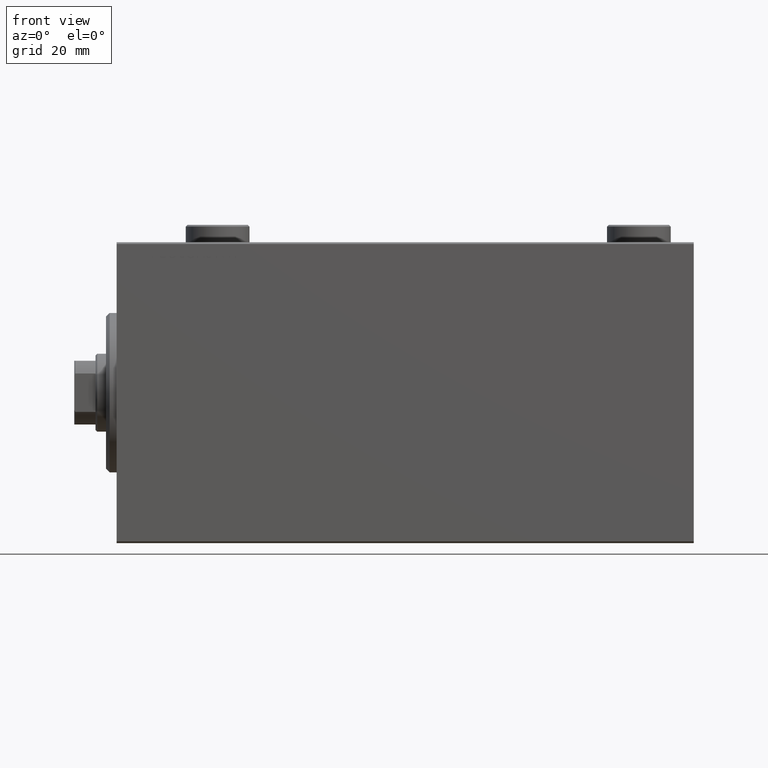
[diagram: clean part render]
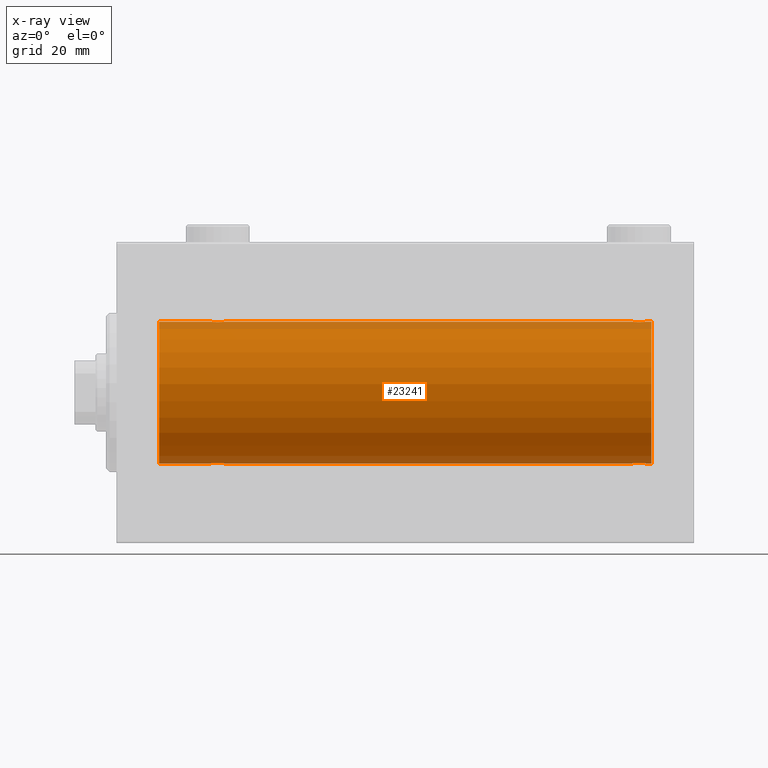
[diagram: x-ray — body ghosted, one internal face saturated and labeled with its STEP entity id]
A machine part, front view, then the same camera in x-ray: the body is ghosted and one INTERNAL B-rep face — a face not visible from any outside direction — is saturated and labeled: STEP entity #23241.
In plain terms, the highlighted cylindrical surface (partial cylindrical patch) has radius 20 mm, axis along (-1, -0, -0).
Its self-contained STEP definition (entity closure, byte-faithful):
#497 = AXIS2_PLACEMENT_3D ( 'NONE', #44678, #2297, #10089 ) ;
#591 = CARTESIAN_POINT ( 'NONE',  ( 28.23922743968432059, -1.987205673487808966, -19.90104673894211018 ) ) ;
#1160 = CARTESIAN_POINT ( 'NONE',  ( 149.5000000000000284, 6.344962748519499734E-15, 20.00000000000000000 ) ) ;
#1394 = CARTESIAN_POINT ( 'NONE',  ( 148.3857907667072595, -1.797933656607912489, 19.91908554465557657 ) ) ;
#1629 = CARTESIAN_POINT ( 'NONE',  ( 146.4969344366040502, -1.735203193119897236, 19.92471783160911514 ) ) ;
#1840 = EDGE_CURVE ( 'NONE', #19970, #13165, #6858, .T. ) ;
#1856 = CARTESIAN_POINT ( 'NONE',  ( 149.4467948419180061, -0.5270924491156545599, 19.99450181871975829 ) ) ;
#1970 = CARTESIAN_POINT ( 'NONE',  ( 148.3882943720709306, -1.796691196322330653, -19.91919800395357143 ) ) ;
#2202 = CARTESIAN_POINT ( 'NONE',  ( 148.0192351213528070, -1.935816449315140408, -19.90611141657402072 ) ) ;
#2297 = DIRECTION ( 'NONE',  ( -1.000000000000000000, -0.000000000000000000, -0.000000000000000000 ) ) ;
#2512 = CYLINDRICAL_SURFACE ( 'NONE', #497, 20.00000000000000000 ) ;
#2840 = VERTEX_POINT ( 'NONE', #42588 ) ;
#3129 = CARTESIAN_POINT ( 'NONE',  ( 29.14348528733041377, -1.898187925611340310, 19.90978194174746818 ) ) ;
#3509 = ORIENTED_EDGE ( 'NONE', *, *, #38468, .T. ) ;
#3585 = CARTESIAN_POINT ( 'NONE',  ( 29.50067219139244301, -1.736582545981377290, 19.92459705242981371 ) ) ;
#3819 = CARTESIAN_POINT ( 'NONE',  ( 26.50000000000000711, -0.2610801504281919927, 20.00000000000000000 ) ) ;
#4063 = CARTESIAN_POINT ( 'NONE',  ( 28.63365196142448355, -1.999898234284062992, -19.89975896996866211 ) ) ;
#4294 = CARTESIAN_POINT ( 'NONE',  ( 30.44755062882508412, -0.5243189001514996228, -19.99457699142849876 ) ) ;
#4415 = CIRCLE ( 'NONE', #11035, 20.00000000000000000 ) ;
#4723 = CARTESIAN_POINT ( 'NONE',  ( 30.50000000000000000, -6.994834070630008937E-15, 20.00000000000000000 ) ) ;
#5037 = EDGE_CURVE ( 'NONE', #19289, #31467, #23280, .T. ) ;
#5087 = DIRECTION ( 'NONE',  ( -1.000000000000000000, -0.000000000000000000, -0.000000000000000000 ) ) ;
#5212 = CARTESIAN_POINT ( 'NONE',  ( 146.8565147126696218, -1.898187925611359850, -19.90978194174746463 ) ) ;
#5431 = CARTESIAN_POINT ( 'NONE',  ( 149.2482591346002039, -1.005710574260847645, -19.97614991974274190 ) ) ;
#5527 = VERTEX_POINT ( 'NONE', #25273 ) ;
#5656 = CARTESIAN_POINT ( 'NONE',  ( 145.9022530844526955, -1.230936344679295136, -19.96293863536308422 ) ) ;
#5856 = VECTOR ( 'NONE', #39026, 1000.000000000000000 ) ;
#5881 = CARTESIAN_POINT ( 'NONE',  ( 145.7531302369693265, -1.008108445278692589, -19.97602680192585822 ) ) ;
#6183 = DIRECTION ( 'NONE',  ( -1.000000000000000000, -0.000000000000000000, -0.000000000000000000 ) ) ;
#6209 = VERTEX_POINT ( 'NONE', #43754 ) ;
#6574 = CARTESIAN_POINT ( 'NONE',  ( 29.01648532918904522, -1.936551476643006087, 19.90603968831098314 ) ) ;
#6836 = CARTESIAN_POINT ( 'NONE',  ( 27.61420923329272981, -1.797933656607917596, -19.91908554465558367 ) ) ;
#6858 = B_SPLINE_CURVE_WITH_KNOTS ( 'NONE', 3,
 ( #27556, #3819, #13950, #7028, #38840, #41615, #28017, #16958, #21105, #24090, #14180, #42079, #31018, #38148, #7261, #6574, #3129, #35142, #3585, #10704, #24791, #17876, #25247, #18784, #35827, #4723 ),
 .UNSPECIFIED., .F., .F.,
 ( 4, 2, 2, 2, 2, 2, 2, 2, 2, 2, 2, 2, 4 ),
 ( 0.006256819553329787641, 0.007038738568778755977, 0.007820657584227725181, 0.008211617091952205447, 0.008602576599676685712, 0.008993536107401164242, 0.009384495615125644508, 0.009775455122850124773, 0.01016641463057460504, 0.01055737413829908530, 0.01094833364602356557, 0.01173025266147252610, 0.01251217167692148663 ),
 .UNSPECIFIED. ) ;
#7028 = CARTESIAN_POINT ( 'NONE',  ( 26.75174086539981033, -1.005710574260840318, 19.97614991974274190 ) ) ;
#7216 = CARTESIAN_POINT ( 'NONE',  ( 151.0000000000000000, 2.449293598294706513E-15, -20.00000000000000000 ) ) ;
#7261 = CARTESIAN_POINT ( 'NONE',  ( 28.76077256031568297, -1.987205673487810298, 19.90104673894211018 ) ) ;
#7932 = B_SPLINE_CURVE_WITH_KNOTS ( 'NONE', 3,
 ( #18917, #8312, #26288, #19607, #43802, #8999, #33204, #1629, #26524, #25843, #12216, #23062, #44252, #33429, #37115, #33645, #16133, #1394, #9219, #29970, #22379, #12673, #29528, #1856, #26745, #1160 ),
 .UNSPECIFIED., .F., .F.,
 ( 4, 2, 2, 2, 2, 2, 2, 2, 2, 2, 2, 2, 4 ),
 ( 0.006256819553329837080, 0.007038738568778794141, 0.007820657584227751202, 0.008211617091952229733, 0.008602576599676708263, 0.008993536107401185059, 0.009384495615125663590, 0.009775455122850142120, 0.01016641463057462239, 0.01055737413829909918, 0.01094833364602357945, 0.01173025266147259202, 0.01251217167692160633 ),
 .UNSPECIFIED. ) ;
#7958 = VECTOR ( 'NONE', #5087, 1000.000000000000000 ) ;
#7972 = CARTESIAN_POINT ( 'NONE',  ( 26.90225308445269903, -1.230936344679278260, -19.96293863536309132 ) ) ;
#8312 = CARTESIAN_POINT ( 'NONE',  ( 145.5000000000000284, -0.2610801504281912711, 19.99999999999999645 ) ) ;
#8655 = CARTESIAN_POINT ( 'NONE',  ( 145.5000000000000284, -1.510525576716094838E-14, -20.00000000000000000 ) ) ;
#8766 = CARTESIAN_POINT ( 'NONE',  ( 151.0000000000000000, 2.449293598294706513E-15, -20.00000000000000000 ) ) ;
#8829 = ORIENTED_EDGE ( 'NONE', *, *, #1840, .T. ) ;
#8999 = CARTESIAN_POINT ( 'NONE',  ( 146.1769333108053672, -1.505486175075775979, 19.94347168299867690 ) ) ;
#9029 = CIRCLE ( 'NONE', #16403, 20.00000000000000000 ) ;
#9114 = CARTESIAN_POINT ( 'NONE',  ( 148.8230666891947465, -1.505486175075791966, -19.94347168299867690 ) ) ;
#9219 = CARTESIAN_POINT ( 'NONE',  ( 148.5006721913923968, -1.736582545981374404, 19.92459705242980306 ) ) ;
#10089 = DIRECTION ( 'NONE',  ( 0.000000000000000000, 0.000000000000000000, 1.000000000000000000 ) ) ;
#10286 = CARTESIAN_POINT ( 'NONE',  ( 27.85651471266959334, -1.898187925611338533, -19.90978194174746818 ) ) ;
#10425 = VECTOR ( 'NONE', #6183, 1000.000000000000000 ) ;
#10704 = CARTESIAN_POINT ( 'NONE',  ( 29.71805419472151044, -1.591668229360198028, 19.93669678979812332 ) ) ;
#10834 = EDGE_CURVE ( 'NONE', #6209, #36953, #4415, .T. ) ;
#10958 = CARTESIAN_POINT ( 'NONE',  ( 29.72028945794465571, -1.589957321664208223, -19.93683391378736047 ) ) ;
#11035 = AXIS2_PLACEMENT_3D ( 'NONE', #35609, #25936, #39768 ) ;
#11459 = VECTOR ( 'NONE', #42663, 1000.000000000000000 ) ;
#12104 = CARTESIAN_POINT ( 'NONE',  ( 145.5000000000000284, -1.553188236289650144E-23, 20.00000000000000000 ) ) ;
#12145 = CARTESIAN_POINT ( 'NONE',  ( 12.00000000000001066, 0.000000000000000000, 0.000000000000000000 ) ) ;
#12216 = CARTESIAN_POINT ( 'NONE',  ( 146.9807648786473067, -1.935816449315131527, 19.90611141657401717 ) ) ;
#12673 = CARTESIAN_POINT ( 'NONE',  ( 149.0977469155472761, -1.230936344679278704, 19.96293863536309132 ) ) ;
#12785 = CARTESIAN_POINT ( 'NONE',  ( 147.7635814409141517, -1.986835489085827966, -19.90108393514800511 ) ) ;
#12961 = EDGE_CURVE ( 'NONE', #2840, #15041, #24518, .T. ) ;
#13165 = VERTEX_POINT ( 'NONE', #14819 ) ;
#13253 = CARTESIAN_POINT ( 'NONE',  ( 12.00000000000001066, 0.000000000000000000, 20.00000000000000000 ) ) ;
#13358 = VERTEX_POINT ( 'NONE', #34315 ) ;
#13749 = CARTESIAN_POINT ( 'NONE',  ( 29.14630673924643744, -1.897222639860594029, -19.90987429971496780 ) ) ;
#13759 = CARTESIAN_POINT ( 'NONE',  ( 26.50000000000000355, -3.809869420541414000E-15, -20.00000000000000000 ) ) ;
#13950 = CARTESIAN_POINT ( 'NONE',  ( 26.55244937117492299, -0.5243189001515012881, 19.99457699142850586 ) ) ;
#13987 = CARTESIAN_POINT ( 'NONE',  ( 27.17903093152710525, -1.507328959728492457, -19.94333197382385592 ) ) ;
#14180 = CARTESIAN_POINT ( 'NONE',  ( 27.98076487864723205, -1.935816449315125531, 19.90611141657401717 ) ) ;
#14206 = CARTESIAN_POINT ( 'NONE',  ( 30.50000000000000000, 2.449293582768389958E-15, -20.00000000000000000 ) ) ;
#14819 = CARTESIAN_POINT ( 'NONE',  ( 30.50000000000000000, -6.994834070630008937E-15, 20.00000000000000000 ) ) ;
#15041 = VERTEX_POINT ( 'NONE', #14206 ) ;
#16133 = CARTESIAN_POINT ( 'NONE',  ( 148.1434852873304067, -1.898187925611334093, 19.90978194174746463 ) ) ;
#16260 = CARTESIAN_POINT ( 'NONE',  ( 146.4993278086076600, -1.736582545981393277, -19.92459705242980661 ) ) ;
#16297 = DIRECTION ( 'NONE',  ( 0.000000000000000000, 0.000000000000000000, 1.000000000000000000 ) ) ;
#16403 = AXIS2_PLACEMENT_3D ( 'NONE', #12145, #44407, #16297 ) ;
#16958 = CARTESIAN_POINT ( 'NONE',  ( 27.49693443660397563, -1.735203193119895460, 19.92471783160911869 ) ) ;
#17019 = ORIENTED_EDGE ( 'NONE', *, *, #22083, .T. ) ;
#17441 = CARTESIAN_POINT ( 'NONE',  ( 27.28194580527848601, -1.591668229360197140, -19.93669678979812332 ) ) ;
#17459 = VECTOR ( 'NONE', #29038, 1000.000000000000000 ) ;
#17876 = CARTESIAN_POINT ( 'NONE',  ( 30.09774691554729742, -1.230936344679279371, 19.96293863536309487 ) ) ;
#17939 = ORIENTED_EDGE ( 'NONE', *, *, #43911, .F. ) ;
#18124 = CARTESIAN_POINT ( 'NONE',  ( 28.36941128289166159, -2.000100592782553921, -19.89973863218036598 ) ) ;
#18181 = LINE ( 'NONE', #43068, #21742 ) ;
#18371 = EDGE_CURVE ( 'NONE', #36953, #5527, #18181, .T. ) ;
#18593 = CARTESIAN_POINT ( 'NONE',  ( 149.5000000000000284, 2.449293582762473501E-15, -20.00000000000000000 ) ) ;
#18784 = CARTESIAN_POINT ( 'NONE',  ( 30.44679484191798124, -0.5270924491156734337, 19.99450181871975829 ) ) ;
#18917 = CARTESIAN_POINT ( 'NONE',  ( 145.5000000000000284, -1.553188236289650144E-23, 20.00000000000000000 ) ) ;
#19289 = VERTEX_POINT ( 'NONE', #13759 ) ;
#19499 = CARTESIAN_POINT ( 'NONE',  ( 147.2392274396843277, -1.987205673487821178, -19.90104673894210308 ) ) ;
#19607 = CARTESIAN_POINT ( 'NONE',  ( 145.7517408653997961, -1.005710574260841650, 19.97614991974273835 ) ) ;
#19970 = VERTEX_POINT ( 'NONE', #21634 ) ;
#20487 = FACE_OUTER_BOUND ( 'NONE', #35970, .T. ) ;
#20512 = EDGE_CURVE ( 'NONE', #21114, #13165, #39208, .T. ) ;
#20734 = ORIENTED_EDGE ( 'NONE', *, *, #22597, .T. ) ;
#21105 = CARTESIAN_POINT ( 'NONE',  ( 27.61170562792908711, -1.796691196322317996, 19.91919800395357143 ) ) ;
#21114 = VERTEX_POINT ( 'NONE', #12104 ) ;
#21257 = ORIENTED_EDGE ( 'NONE', *, *, #38930, .T. ) ;
#21370 = CARTESIAN_POINT ( 'NONE',  ( 30.50000000000000000, 2.449293582768389958E-15, -20.00000000000000000 ) ) ;
#21595 = CARTESIAN_POINT ( 'NONE',  ( 29.38829437207091999, -1.796691196322316664, -19.91919800395357143 ) ) ;
#21634 = CARTESIAN_POINT ( 'NONE',  ( 26.50000000000000355, -1.552636033655995435E-23, 20.00000000000000000 ) ) ;
#21742 = VECTOR ( 'NONE', #39614, 1000.000000000000000 ) ;
#22083 = EDGE_CURVE ( 'NONE', #13358, #2840, #22265, .T. ) ;
#22265 = B_SPLINE_CURVE_WITH_KNOTS ( 'NONE', 3,
 ( #18593, #22957, #26643, #5431, #33766, #9114, #43696, #44372, #1970, #23395, #2202, #12785, #22729, #40703, #19499, #33096, #5212, #26855, #16260, #40919, #33539, #5656, #5881, #37006, #30324, #8655 ),
 .UNSPECIFIED., .F., .F.,
 ( 4, 2, 2, 2, 2, 2, 2, 2, 2, 2, 2, 2, 4 ),
 ( 0.006256819553329819733, 0.007038738568778733426, 0.007820657584227647119, 0.008211617091952132588, 0.008602576599676618058, 0.008993536107401105262, 0.009384495615125590731, 0.009775455122850077935, 0.01016641463057456340, 0.01055737413829905061, 0.01094833364602353781, 0.01173025266147256773, 0.01251217167692160112 ),
 .UNSPECIFIED. ) ;
#22379 = CARTESIAN_POINT ( 'NONE',  ( 148.8209690684728912, -1.507328959728491347, 19.94333197382385592 ) ) ;
#22597 = EDGE_CURVE ( 'NONE', #6209, #13358, #35943, .T. ) ;
#22729 = CARTESIAN_POINT ( 'NONE',  ( 147.6336519614245617, -1.999898234284076981, -19.89975896996866211 ) ) ;
#22957 = CARTESIAN_POINT ( 'NONE',  ( 149.5000000000000284, -0.2610801504281899388, -19.99999999999999645 ) ) ;
#23062 = CARTESIAN_POINT ( 'NONE',  ( 147.2364185590858767, -1.986835489085816198, 19.90108393514801222 ) ) ;
#23241 = ADVANCED_FACE ( 'NONE', ( #20487 ), #2512, .F. ) ;
#23280 = LINE ( 'NONE', #8766, #7958 ) ;
#23395 = CARTESIAN_POINT ( 'NONE',  ( 148.1463067392464552, -1.897222639860608906, -19.90987429971496070 ) ) ;
#24090 = CARTESIAN_POINT ( 'NONE',  ( 27.85369326075355545, -1.897222639860595583, 19.90987429971497491 ) ) ;
#24361 = CARTESIAN_POINT ( 'NONE',  ( 29.01923512135276795, -1.935816449315124643, -19.90611141657401717 ) ) ;
#24518 = LINE ( 'NONE', #7216, #5856 ) ;
#24608 = VERTEX_POINT ( 'NONE', #13253 ) ;
#24791 = CARTESIAN_POINT ( 'NONE',  ( 29.82096906847289830, -1.507328959728492901, 19.94333197382385592 ) ) ;
#25048 = CARTESIAN_POINT ( 'NONE',  ( 30.09941524884030173, -1.228758402364235502, -19.96307487248084911 ) ) ;
#25247 = CARTESIAN_POINT ( 'NONE',  ( 30.24686976303071617, -1.008108445278690146, 19.97602680192586533 ) ) ;
#25273 = CARTESIAN_POINT ( 'NONE',  ( 149.5000000000000284, 6.344962748519499734E-15, 20.00000000000000000 ) ) ;
#25843 = CARTESIAN_POINT ( 'NONE',  ( 146.8536932607536016, -1.897222639860593363, 19.90987429971496780 ) ) ;
#25936 = DIRECTION ( 'NONE',  ( -1.000000000000000000, 0.000000000000000000, 0.000000000000000000 ) ) ;
#26175 = CARTESIAN_POINT ( 'NONE',  ( 26.75313023696928738, -1.008108445278687704, -19.97602680192586533 ) ) ;
#26288 = CARTESIAN_POINT ( 'NONE',  ( 145.5524493711749869, -0.5243189001515013992, 19.99457699142850231 ) ) ;
#26524 = CARTESIAN_POINT ( 'NONE',  ( 146.6117056279290694, -1.796691196322314443, 19.91919800395357143 ) ) ;
#26643 = CARTESIAN_POINT ( 'NONE',  ( 149.4475506288250699, -0.5243189001515055070, -19.99457699142850231 ) ) ;
#26745 = CARTESIAN_POINT ( 'NONE',  ( 149.5000000000000568, -0.2644051013331001898, 20.00000000000000355 ) ) ;
#26855 = CARTESIAN_POINT ( 'NONE',  ( 146.6142092332927405, -1.797933656607938691, -19.91908554465557657 ) ) ;
#26969 = CARTESIAN_POINT ( 'NONE',  ( 12.00000000000001066, 2.449293598294706513E-15, -20.00000000000000000 ) ) ;
#27035 = ORIENTED_EDGE ( 'NONE', *, *, #12961, .T. ) ;
#27556 = CARTESIAN_POINT ( 'NONE',  ( 26.50000000000000355, -1.552636033655995435E-23, 20.00000000000000000 ) ) ;
#27814 = CARTESIAN_POINT ( 'NONE',  ( 27.98351467081095123, -1.936551476643005198, -19.90603968831098314 ) ) ;
#28017 = CARTESIAN_POINT ( 'NONE',  ( 27.27971054205536205, -1.589957321664209111, 19.93683391378736403 ) ) ;
#28272 = CARTESIAN_POINT ( 'NONE',  ( 29.82306668919470383, -1.505486175075772870, -19.94347168299867334 ) ) ;
#29038 = DIRECTION ( 'NONE',  ( -1.000000000000000000, -0.000000000000000000, -0.000000000000000000 ) ) ;
#29203 = ORIENTED_EDGE ( 'NONE', *, *, #41682, .T. ) ;
#29413 = CARTESIAN_POINT ( 'NONE',  ( 26.55320515808203297, -0.5270924491156698810, -19.99450181871976184 ) ) ;
#29528 = CARTESIAN_POINT ( 'NONE',  ( 149.2468697630307020, -1.008108445278671050, 19.97602680192585822 ) ) ;
#29725 = CARTESIAN_POINT ( 'NONE',  ( 151.0000000000000000, 2.449293598294706513E-15, -20.00000000000000000 ) ) ;
#29970 = CARTESIAN_POINT ( 'NONE',  ( 148.7180541947215602, -1.591668229360197806, 19.93669678979812687 ) ) ;
#30324 = CARTESIAN_POINT ( 'NONE',  ( 145.5000000000000853, -0.2644051013331212840, -20.00000000000000000 ) ) ;
#31018 = CARTESIAN_POINT ( 'NONE',  ( 28.36634803857552001, -1.999898234284063436, 19.89975896996866211 ) ) ;
#31467 = VERTEX_POINT ( 'NONE', #26969 ) ;
#31946 = CARTESIAN_POINT ( 'NONE',  ( 30.24825913460018612, -1.005710574260838985, -19.97614991974274190 ) ) ;
#32513 = CARTESIAN_POINT ( 'NONE',  ( 151.0000000000000000, 0.000000000000000000, 20.00000000000000000 ) ) ;
#33096 = CARTESIAN_POINT ( 'NONE',  ( 146.9835146708108766, -1.936551476643014080, -19.90603968831098669 ) ) ;
#33204 = CARTESIAN_POINT ( 'NONE',  ( 146.2797105420553692, -1.589957321664211998, 19.93683391378736403 ) ) ;
#33320 = CARTESIAN_POINT ( 'NONE',  ( 26.50000000000000355, -3.809869420541414000E-15, -20.00000000000000000 ) ) ;
#33429 = CARTESIAN_POINT ( 'NONE',  ( 147.6305887171083953, -2.000100592782551701, 19.89973863218036598 ) ) ;
#33539 = CARTESIAN_POINT ( 'NONE',  ( 146.1790309315271372, -1.507328959728508666, -19.94333197382385947 ) ) ;
#33631 = ORIENTED_EDGE ( 'NONE', *, *, #5037, .T. ) ;
#33645 = CARTESIAN_POINT ( 'NONE',  ( 148.0164853291890665, -1.936551476642997649, 19.90603968831098669 ) ) ;
#33766 = CARTESIAN_POINT ( 'NONE',  ( 149.0994152488403586, -1.228758402364252822, -19.96307487248083845 ) ) ;
#34315 = CARTESIAN_POINT ( 'NONE',  ( 149.5000000000000284, 2.449293582762473501E-15, -20.00000000000000000 ) ) ;
#34948 = CARTESIAN_POINT ( 'NONE',  ( 27.49932780860757475, -1.736582545981376180, -19.92459705242981371 ) ) ;
#35142 = CARTESIAN_POINT ( 'NONE',  ( 29.38579076670729151, -1.797933656607919817, 19.91908554465558367 ) ) ;
#35609 = CARTESIAN_POINT ( 'NONE',  ( 151.0000000000000000, 0.000000000000000000, 0.000000000000000000 ) ) ;
#35629 = CARTESIAN_POINT ( 'NONE',  ( 28.76358144091416236, -1.986835489085814199, -19.90108393514801222 ) ) ;
#35827 = CARTESIAN_POINT ( 'NONE',  ( 30.49999999999997868, -0.2644051013330948052, 19.99999999999999645 ) ) ;
#35943 = LINE ( 'NONE', #29725, #17459 ) ;
#35970 = EDGE_LOOP ( 'NONE', ( #44535, #20734, #17019, #27035, #21257, #33631, #29203, #17939, #8829, #41499, #3509, #40505 ) ) ;
#36093 = CARTESIAN_POINT ( 'NONE',  ( 26.50000000000001066, -0.2644051013331030209, -20.00000000000000355 ) ) ;
#36953 = VERTEX_POINT ( 'NONE', #38849 ) ;
#37006 = CARTESIAN_POINT ( 'NONE',  ( 145.5532051580820507, -0.5270924491156762093, -19.99450181871976184 ) ) ;
#37115 = CARTESIAN_POINT ( 'NONE',  ( 147.7607725603157292, -1.987205673487804747, 19.90104673894209952 ) ) ;
#38148 = CARTESIAN_POINT ( 'NONE',  ( 28.63058871710834552, -2.000100592782554809, 19.89973863218036598 ) ) ;
#38444 = CARTESIAN_POINT ( 'NONE',  ( 151.0000000000000000, 0.000000000000000000, 20.00000000000000000 ) ) ;
#38468 = EDGE_CURVE ( 'NONE', #21114, #5527, #7932, .T. ) ;
#38840 = CARTESIAN_POINT ( 'NONE',  ( 26.90058475115969472, -1.228758402364234392, 19.96307487248084556 ) ) ;
#38849 = CARTESIAN_POINT ( 'NONE',  ( 151.0000000000000000, 0.000000000000000000, 20.00000000000000000 ) ) ;
#38930 = EDGE_CURVE ( 'NONE', #15041, #19289, #39251, .T. ) ;
#39026 = DIRECTION ( 'NONE',  ( -1.000000000000000000, -0.000000000000000000, -0.000000000000000000 ) ) ;
#39208 = LINE ( 'NONE', #32513, #11459 ) ;
#39251 = B_SPLINE_CURVE_WITH_KNOTS ( 'NONE', 3,
 ( #21370, #41881, #4294, #31946, #25048, #28272, #10958, #45554, #21595, #13749, #24361, #35629, #4063, #18124, #591, #27814, #10286, #6836, #34948, #17441, #13987, #7972, #26175, #29413, #36093, #33320 ),
 .UNSPECIFIED., .F., .F.,
 ( 4, 2, 2, 2, 2, 2, 2, 2, 2, 2, 2, 2, 4 ),
 ( 0.006256819553329842284, 0.007038738568778818427, 0.007820657584227792836, 0.008211617091952278305, 0.008602576599676762040, 0.008993536107401245774, 0.009384495615125729509, 0.009775455122850213244, 0.01016641463057469871, 0.01055737413829918071, 0.01094833364602366618, 0.01173025266147263365, 0.01251217167692159939 ),
 .UNSPECIFIED. ) ;
#39614 = DIRECTION ( 'NONE',  ( -1.000000000000000000, -0.000000000000000000, -0.000000000000000000 ) ) ;
#39768 = DIRECTION ( 'NONE',  ( 0.000000000000000000, 0.000000000000000000, 1.000000000000000000 ) ) ;
#40505 = ORIENTED_EDGE ( 'NONE', *, *, #18371, .F. ) ;
#40703 = CARTESIAN_POINT ( 'NONE',  ( 147.3694112828916332, -2.000100592782568576, -19.89973863218036243 ) ) ;
#40919 = CARTESIAN_POINT ( 'NONE',  ( 146.2819458052784682, -1.591668229360214903, -19.93669678979811977 ) ) ;
#41499 = ORIENTED_EDGE ( 'NONE', *, *, #20512, .F. ) ;
#41615 = CARTESIAN_POINT ( 'NONE',  ( 27.17693331080530683, -1.505486175075772426, 19.94347168299868045 ) ) ;
#41682 = EDGE_CURVE ( 'NONE', #31467, #24608, #9029, .T. ) ;
#41881 = CARTESIAN_POINT ( 'NONE',  ( 30.49999999999999645, -0.2610801504281900498, -19.99999999999999645 ) ) ;
#42079 = CARTESIAN_POINT ( 'NONE',  ( 28.23641855908585185, -1.986835489085814643, 19.90108393514801222 ) ) ;
#42588 = CARTESIAN_POINT ( 'NONE',  ( 145.5000000000000284, -1.510525576716094838E-14, -20.00000000000000000 ) ) ;
#42663 = DIRECTION ( 'NONE',  ( -1.000000000000000000, -0.000000000000000000, -0.000000000000000000 ) ) ;
#43068 = CARTESIAN_POINT ( 'NONE',  ( 151.0000000000000000, 0.000000000000000000, 20.00000000000000000 ) ) ;
#43696 = CARTESIAN_POINT ( 'NONE',  ( 148.7202894579446877, -1.589957321664208001, -19.93683391378736403 ) ) ;
#43754 = CARTESIAN_POINT ( 'NONE',  ( 151.0000000000000000, 2.449293598294706513E-15, -20.00000000000000000 ) ) ;
#43802 = CARTESIAN_POINT ( 'NONE',  ( 145.9005847511597835, -1.228758402364239499, 19.96307487248084556 ) ) ;
#43911 = EDGE_CURVE ( 'NONE', #19970, #24608, #44897, .T. ) ;
#44252 = CARTESIAN_POINT ( 'NONE',  ( 147.3663480385755236, -1.999898234284060772, 19.89975896996866211 ) ) ;
#44372 = CARTESIAN_POINT ( 'NONE',  ( 148.5030655633960066, -1.735203193119897014, -19.92471783160911158 ) ) ;
#44407 = DIRECTION ( 'NONE',  ( -1.000000000000000000, 0.000000000000000000, 0.000000000000000000 ) ) ;
#44535 = ORIENTED_EDGE ( 'NONE', *, *, #10834, .F. ) ;
#44678 = CARTESIAN_POINT ( 'NONE',  ( 151.0000000000000000, 0.000000000000000000, 0.000000000000000000 ) ) ;
#44897 = LINE ( 'NONE', #38444, #10425 ) ;
#45554 = CARTESIAN_POINT ( 'NONE',  ( 29.50306556339602437, -1.735203193119894349, -19.92471783160910803 ) ) ;